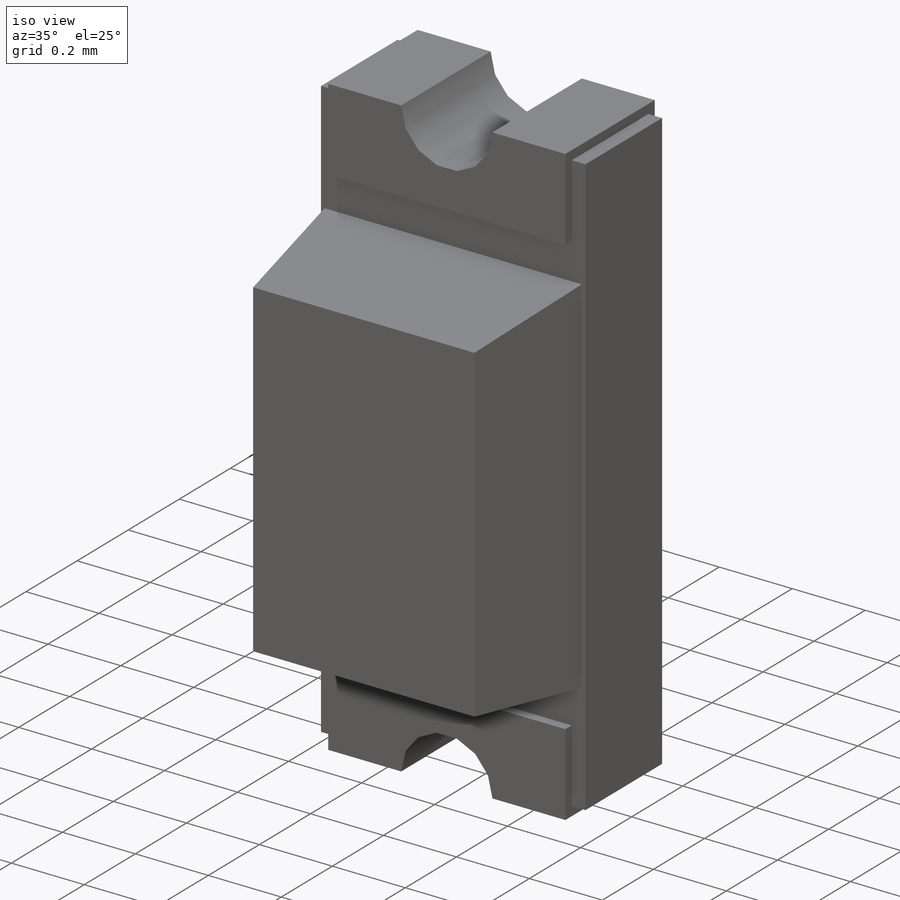
[diagram: iso view]
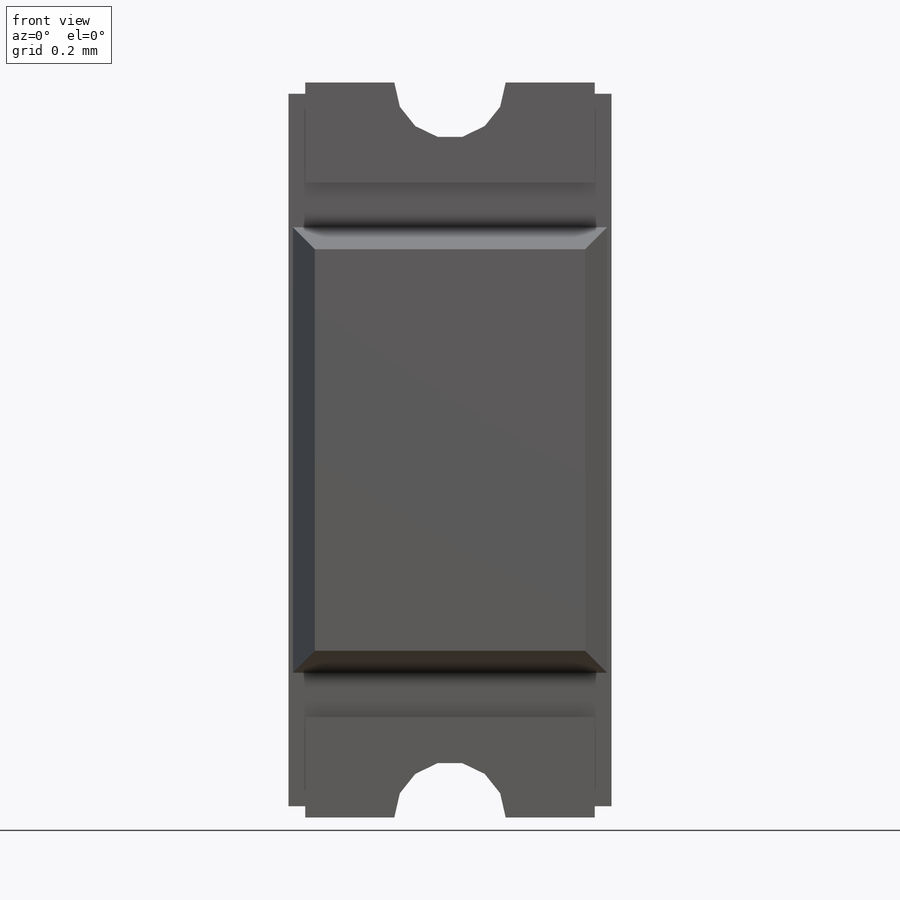
[diagram: front view]
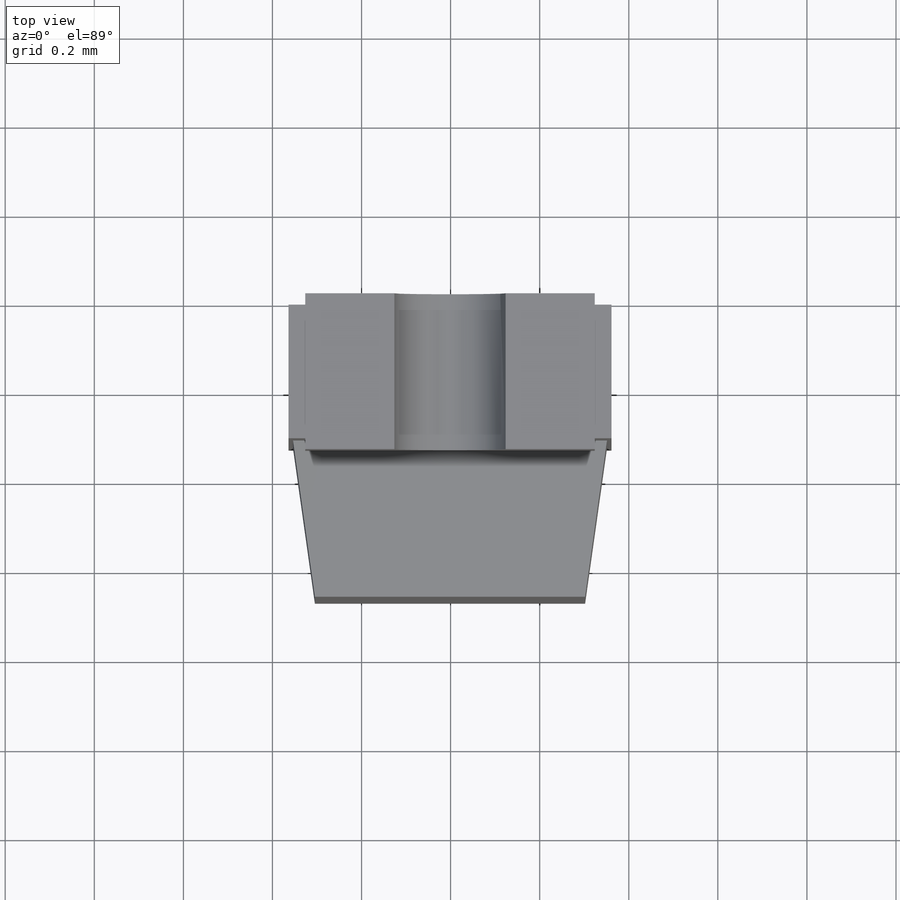
[diagram: top view]
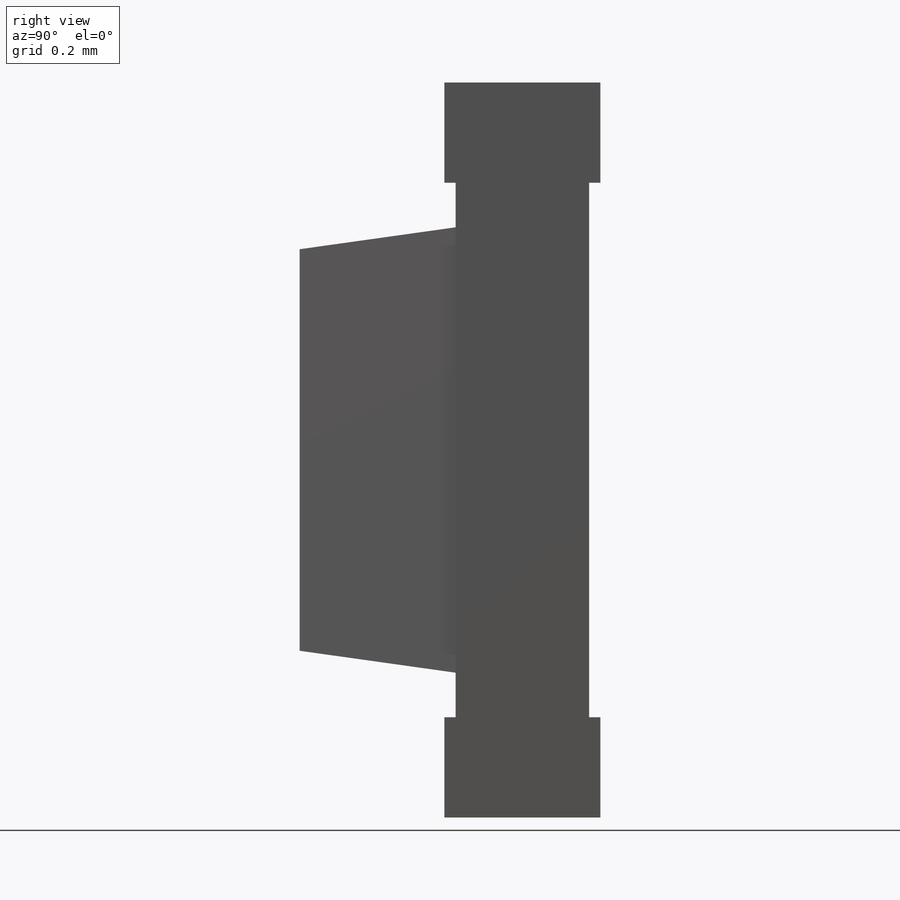
[diagram: right view]
SOLIDWORKS PART (.sldprt)
format: sldprt  version: not decoded by parser v0  size: 157,696 bytes
history: native  units: mm
features: sketch x3, extrude x3, material x1 (+12 scaffold rows collapsed)
feature tree (19):
  scaffold x12  (default folders/planes/origin — collapsed)
  material  "Material <not specified>"
  sketch  "Esboço1"  dims[c1.D7=0.25mm c1.D1=0.65mm c1.D2=0.225mm c1.D3=0.65mm c1.D4=0.225mm c1.D5=0.0mm c1.D6=1.2mm c2.D7=0.0mm]
  extrude  "Ressalto-extrusão1"  Depth=0.35mm
  sketch  "Esboço2"  dims[D5=0.35mm D1=0.725mm D2=1.6mm D3=0.2mm D4=0.3625mm]
  extrude  "Ressalto-extrusão2"  Depth=0.3mm
  sketch  "Esboço3"  dims[D1=0.5mm D2=1.0mm D3=0.705mm D4=0.01mm]
  extrude  "Ressalto-extrusão3"  Depth=0.35mm
decode coverage: 6 of 6 modeling features carry decoded parameters
note: suppression state not decoded; provenance and decode notes live in map.json
